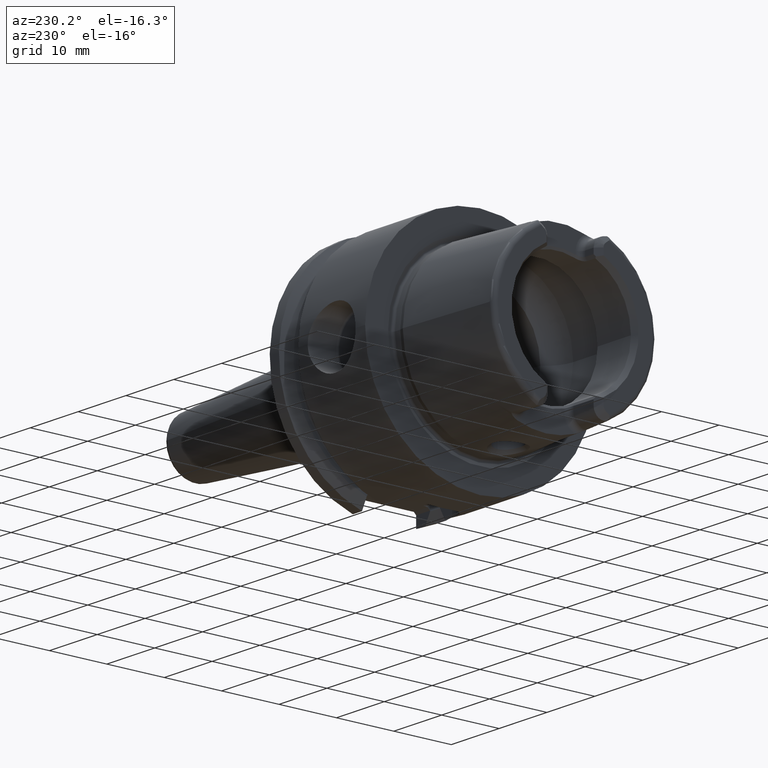
[diagram: clean part render]
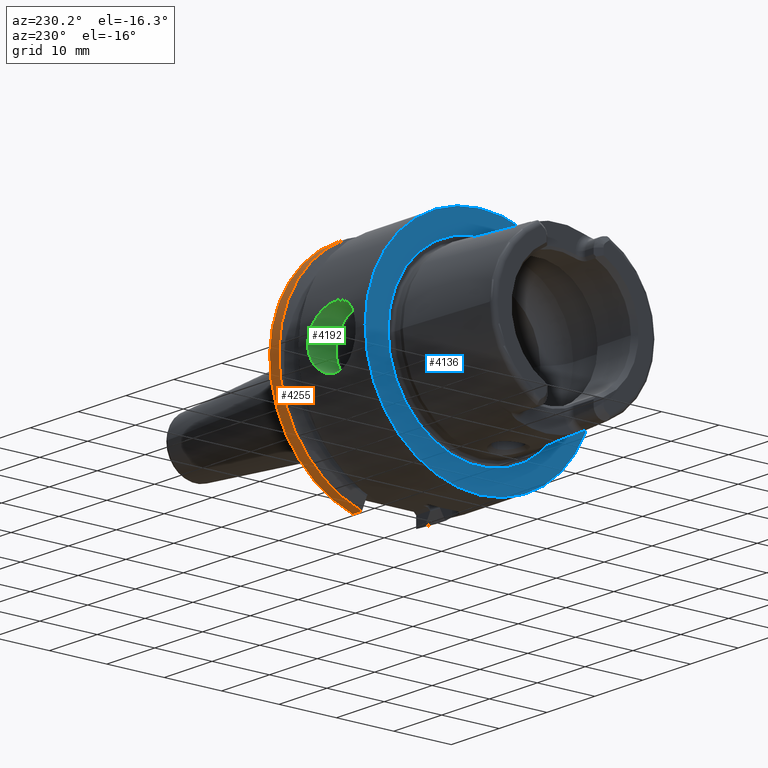
[diagram: same view with three faces highlighted in distinct colors, each labeled with its STEP entity id]
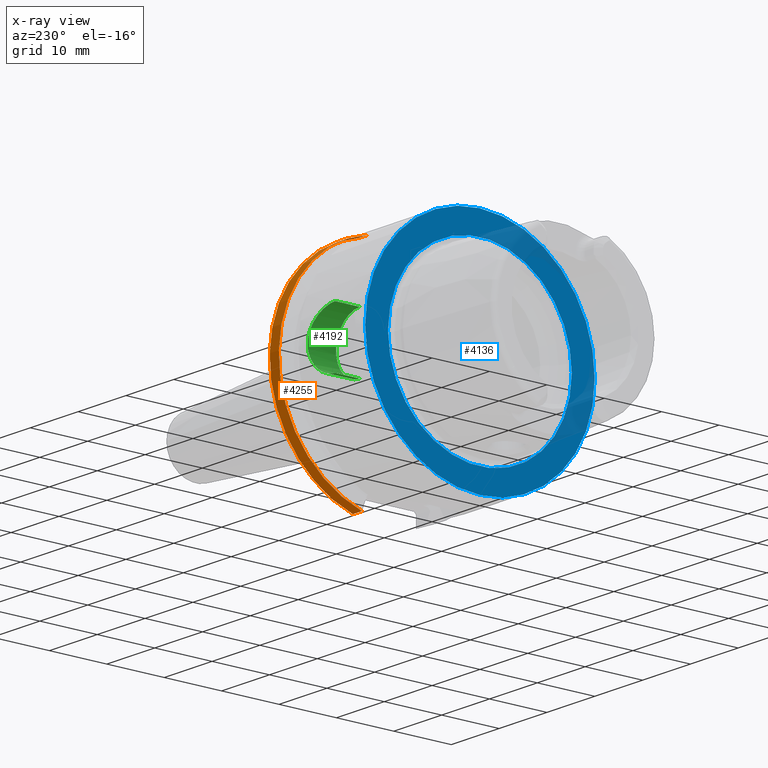
[diagram: x-ray of the same camera — body ghosted, the three highlighted faces saturated]
A machine part, auxiliary view with three faces highlighted in distinct colors.
The next image is the same camera in x-ray (body ghosted, the three faces saturated) — at least one of them is partly hidden behind the body in this view.
Their STEP definitions:

[orange] entity #4255 — the highlighted cylindrical surface (partial cylindrical patch) has radius 20 mm, axis along (1, 0, 0).
#1021=CARTESIAN_POINT('',(1.803515969889E1,0.E0,0.E0));
#1022=DIRECTION('',(-1.E0,0.E0,0.E0));
#1023=DIRECTION('',(0.E0,2.25725E-1,9.741910615352E-1));
#1024=AXIS2_PLACEMENT_3D('',#1021,#1022,#1023);
#1026=DIRECTION('',(1.E0,0.E0,0.E0));
#1027=VECTOR('',#1026,1.914840301107E0);
#1028=CARTESIAN_POINT('',(1.803515969889E1,5.5175E0,-1.922387041545E1));
#1029=LINE('',#1028,#1027);
#1030=CARTESIAN_POINT('',(1.995E1,0.E0,0.E0));
#1031=DIRECTION('',(1.E0,0.E0,0.E0));
#1032=DIRECTION('',(0.E0,2.75875E-1,-9.611935207725E-1));
#1033=AXIS2_PLACEMENT_3D('',#1030,#1031,#1032);
#1035=DIRECTION('',(1.E0,0.E0,0.E0));
#1036=VECTOR('',#1035,1.914840301107E0);
#1037=CARTESIAN_POINT('',(1.803515969889E1,4.5145E0,1.948382123070E1));
#1038=LINE('',#1037,#1036);
#1399=CARTESIAN_POINT('',(1.803515969889E1,5.5175E0,-1.922387041545E1));
#1440=CARTESIAN_POINT('',(1.803515969889E1,4.5145E0,1.948382123070E1));
#2859=VERTEX_POINT('',#1440);
#2869=VERTEX_POINT('',#1399);
#3076=CARTESIAN_POINT('',(1.995E1,4.5145E0,1.948382123070E1));
#3077=VERTEX_POINT('',#3076);
#3082=CARTESIAN_POINT('',(1.995E1,5.5175E0,-1.922387041545E1));
#3083=VERTEX_POINT('',#3082);
#4240=CARTESIAN_POINT('',(-2.18925E1,0.E0,0.E0));
#4241=DIRECTION('',(1.E0,0.E0,0.E0));
#4242=DIRECTION('',(0.E0,-1.E0,0.E0));
#4243=AXIS2_PLACEMENT_3D('',#4240,#4241,#4242);
#4244=CYLINDRICAL_SURFACE('',#4243,2.E1);
#4246=ORIENTED_EDGE('',*,*,#4245,.T.);
#4248=ORIENTED_EDGE('',*,*,#4247,.T.);
#4250=ORIENTED_EDGE('',*,*,#4249,.T.);
#4252=ORIENTED_EDGE('',*,*,#4251,.F.);
#4253=EDGE_LOOP('',(#4246,#4248,#4250,#4252));
#4254=FACE_OUTER_BOUND('',#4253,.F.);
#4255=ADVANCED_FACE('',(#4254),#4244,.T.);
#1025=CIRCLE('',#1024,2.E1);
#1034=CIRCLE('',#1033,2.E1);
#4245=EDGE_CURVE('',#2859,#2869,#1025,.T.);
#4247=EDGE_CURVE('',#2869,#3083,#1029,.T.);
#4249=EDGE_CURVE('',#3083,#3077,#1034,.T.);
#4251=EDGE_CURVE('',#2859,#3077,#1038,.T.);

[blue] entity #4136 — the highlighted planar face has unit normal (1, 0, 0).
#848=CARTESIAN_POINT('',(-1.065814103640E-14,0.E0,0.E0));
#849=DIRECTION('',(1.E0,0.E0,0.E0));
#850=DIRECTION('',(0.E0,1.E0,0.E0));
#851=AXIS2_PLACEMENT_3D('',#848,#849,#850);
#853=CARTESIAN_POINT('',(-1.065814103640E-14,0.E0,0.E0));
#854=DIRECTION('',(-1.E0,0.E0,0.E0));
#855=DIRECTION('',(0.E0,1.E0,0.E0));
#856=AXIS2_PLACEMENT_3D('',#853,#854,#855);
#858=CARTESIAN_POINT('',(0.E0,0.E0,0.E0));
#859=DIRECTION('',(-1.E0,0.E0,0.E0));
#860=DIRECTION('',(0.E0,-1.E0,0.E0));
#861=AXIS2_PLACEMENT_3D('',#858,#859,#860);
#863=CARTESIAN_POINT('',(0.E0,0.E0,0.E0));
#864=DIRECTION('',(-1.E0,0.E0,0.E0));
#865=DIRECTION('',(0.E0,1.E0,0.E0));
#866=AXIS2_PLACEMENT_3D('',#863,#864,#865);
#2678=CARTESIAN_POINT('',(0.E0,-1.60037E1,0.E0));
#2679=VERTEX_POINT('',#2678);
#2680=CARTESIAN_POINT('',(0.E0,1.60037E1,0.E0));
#2681=VERTEX_POINT('',#2680);
#3028=CARTESIAN_POINT('',(-1.065814103640E-14,2.E1,0.E0));
#3029=CARTESIAN_POINT('',(-1.065814103640E-14,-2.E1,0.E0));
#3030=VERTEX_POINT('',#3028);
#3031=VERTEX_POINT('',#3029);
#4121=CARTESIAN_POINT('',(0.E0,0.E0,0.E0));
#4122=DIRECTION('',(1.E0,0.E0,0.E0));
#4123=DIRECTION('',(0.E0,-1.E0,0.E0));
#4124=AXIS2_PLACEMENT_3D('',#4121,#4122,#4123);
#4125=PLANE('',#4124);
#4127=ORIENTED_EDGE('',*,*,#4126,.T.);
#4129=ORIENTED_EDGE('',*,*,#4128,.F.);
#4130=EDGE_LOOP('',(#4127,#4129));
#4131=FACE_OUTER_BOUND('',#4130,.F.);
#4132=ORIENTED_EDGE('',*,*,#4116,.T.);
#4133=ORIENTED_EDGE('',*,*,#4100,.T.);
#4134=EDGE_LOOP('',(#4132,#4133));
#4135=FACE_BOUND('',#4134,.F.);
#4136=ADVANCED_FACE('',(#4131,#4135),#4125,.F.);
#852=CIRCLE('',#851,2.E1);
#857=CIRCLE('',#856,2.E1);
#862=CIRCLE('',#861,1.60037E1);
#867=CIRCLE('',#866,1.60037E1);
#4100=EDGE_CURVE('',#2681,#2679,#867,.T.);
#4116=EDGE_CURVE('',#2679,#2681,#862,.T.);
#4126=EDGE_CURVE('',#3030,#3031,#852,.T.);
#4128=EDGE_CURVE('',#3030,#3031,#857,.T.);

[green] entity #4192 — the highlighted cylindrical surface (partial cylindrical patch) has radius 5 mm, axis along (0, 1, 0).
#868=CARTESIAN_POINT('',(1.2E1,2.E1,0.E0));
#869=CARTESIAN_POINT('',(1.2E1,2.E1,1.388364920824E-1));
#870=CARTESIAN_POINT('',(1.198852136236E1,1.999712548747E1,4.163534209624E-1));
#871=CARTESIAN_POINT('',(1.193575387490E1,1.998399805695E1,8.353836532792E-1));
#872=CARTESIAN_POINT('',(1.184807385497E1,1.996247590752E1,1.246772777118E0));
#873=CARTESIAN_POINT('',(1.172808406661E1,1.993361847563E1,1.643522431216E0));
#874=CARTESIAN_POINT('',(1.157779204334E1,1.989842510861E1,2.025268619863E0));
#875=CARTESIAN_POINT('',(1.138689605318E1,1.985523262154E1,2.412968215661E0));
#876=CARTESIAN_POINT('',(1.114061319227E1,1.980202032785E1,2.817609232830E0));
#877=CARTESIAN_POINT('',(1.081673847603E1,1.973634549447E1,3.247067969082E0));
#878=CARTESIAN_POINT('',(1.039181339644E1,1.965788368631E1,3.692535471258E0));
#879=CARTESIAN_POINT('',(9.863422884363E0,1.957260395466E1,4.119686676293E0));
#880=CARTESIAN_POINT('',(9.220127558389E0,1.948779295543E1,4.501864919923E0));
#881=CARTESIAN_POINT('',(8.499148679360E0,1.941800125601E1,4.791634903769E0));
#882=CARTESIAN_POINT('',(7.732800482805E0,1.937386221195E1,4.965596973568E0));
#883=CARTESIAN_POINT('',(7.243547559799E0,1.936491673104E1,5.E0));
#884=CARTESIAN_POINT('',(7.E0,1.936491673104E1,5.E0));
#977=DIRECTION('',(0.E0,-1.E0,0.E0));
#978=VECTOR('',#977,4.3E0);
#979=CARTESIAN_POINT('',(7.E0,1.936491673104E1,5.E0));
#980=LINE('',#979,#978);
#981=DIRECTION('',(0.E0,-1.E0,0.E0));
#982=VECTOR('',#981,4.3E0);
#983=CARTESIAN_POINT('',(7.E0,1.936491673104E1,-5.E0));
#984=LINE('',#983,#982);
#1039=CARTESIAN_POINT('',(7.E0,1.936491673104E1,-5.E0));
#1040=CARTESIAN_POINT('',(7.277269205720E0,1.936491673104E1,-5.E0));
#1041=CARTESIAN_POINT('',(7.817065062970E0,1.937682316948E1,-4.954174733782E0));
#1042=CARTESIAN_POINT('',(8.583101313273E0,1.942478940204E1,-4.764319170226E0));
#1043=CARTESIAN_POINT('',(9.303947795154E0,1.949746008253E1,-4.460164029726E0));
#1044=CARTESIAN_POINT('',(9.964543066702E0,1.958721708415E1,-4.051503127372E0));
#1045=CARTESIAN_POINT('',(1.056239562523E1,1.968731976873E1,-3.537987227676E0));
#1046=CARTESIAN_POINT('',(1.107349740424E1,1.978701078087E1,-2.935069864087E0));
#1047=CARTESIAN_POINT('',(1.148330640224E1,1.987613861185E1,-2.259675346177E0));
#1048=CARTESIAN_POINT('',(1.178037844883E1,1.994579806335E1,-1.533678372167E0));
#1049=CARTESIAN_POINT('',(1.196005250753E1,1.998995644002E1,
-7.733833777005E-1));
#1050=CARTESIAN_POINT('',(1.2E1,2.E1,-2.596655130622E-1));
#1051=CARTESIAN_POINT('',(1.2E1,2.E1,0.E0));
#1955=CARTESIAN_POINT('',(7.E0,1.506491673104E1,0.E0));
#1956=DIRECTION('',(0.E0,1.E0,0.E0));
#1957=DIRECTION('',(0.E0,0.E0,1.E0));
#1958=AXIS2_PLACEMENT_3D('',#1955,#1956,#1957);
#3120=CARTESIAN_POINT('',(7.E0,1.506491673104E1,5.E0));
#3122=VERTEX_POINT('',#3120);
#3124=CARTESIAN_POINT('',(7.E0,1.506491673104E1,-5.E0));
#3126=VERTEX_POINT('',#3124);
#3128=CARTESIAN_POINT('',(7.E0,1.936491673104E1,5.E0));
#3129=VERTEX_POINT('',#3128);
#3130=CARTESIAN_POINT('',(7.E0,1.936491673104E1,-5.E0));
#3131=VERTEX_POINT('',#3130);
#3132=VERTEX_POINT('',#868);
#4176=CARTESIAN_POINT('',(7.E0,1.436491673104E1,0.E0));
#4177=DIRECTION('',(0.E0,1.E0,0.E0));
#4178=DIRECTION('',(0.E0,0.E0,-1.E0));
#4179=AXIS2_PLACEMENT_3D('',#4176,#4177,#4178);
#4180=CYLINDRICAL_SURFACE('',#4179,5.E0);
#4182=ORIENTED_EDGE('',*,*,#4181,.T.);
#4184=ORIENTED_EDGE('',*,*,#4183,.T.);
#4186=ORIENTED_EDGE('',*,*,#4185,.F.);
#4188=ORIENTED_EDGE('',*,*,#4187,.T.);
#4189=ORIENTED_EDGE('',*,*,#4142,.T.);
#4190=EDGE_LOOP('',(#4182,#4184,#4186,#4188,#4189));
#4191=FACE_OUTER_BOUND('',#4190,.F.);
#4192=ADVANCED_FACE('',(#4191),#4180,.F.);
#885=B_SPLINE_CURVE_WITH_KNOTS('',3,(#868,#869,#870,#871,#872,#873,#874,#875,
#876,#877,#878,#879,#880,#881,#882,#883,#884),.UNSPECIFIED.,.F.,.F.,(4,1,1,1,1,
1,1,1,1,1,1,1,1,1,4),(0.E0,7.142857142857E-2,1.428571428571E-1,
2.142857142857E-1,2.857142857143E-1,3.571428571429E-1,4.285714285714E-1,5.E-1,
5.714285714286E-1,6.428571428571E-1,7.142857142857E-1,7.857142857143E-1,
8.571428571429E-1,9.285714285714E-1,1.E0),.UNSPECIFIED.);
#1052=B_SPLINE_CURVE_WITH_KNOTS('',3,(#1039,#1040,#1041,#1042,#1043,#1044,#1045,
#1046,#1047,#1048,#1049,#1050,#1051),.UNSPECIFIED.,.F.,.F.,(4,1,1,1,1,1,1,1,1,1,
4),(0.E0,1.E-1,2.E-1,3.E-1,4.E-1,5.E-1,6.E-1,7.E-1,8.E-1,9.E-1,1.E0),
.UNSPECIFIED.);
#1959=CIRCLE('',#1958,5.E0);
#4142=EDGE_CURVE('',#3132,#3129,#885,.T.);
#4181=EDGE_CURVE('',#3129,#3122,#980,.T.);
#4183=EDGE_CURVE('',#3122,#3126,#1959,.T.);
#4185=EDGE_CURVE('',#3131,#3126,#984,.T.);
#4187=EDGE_CURVE('',#3131,#3132,#1052,.T.);